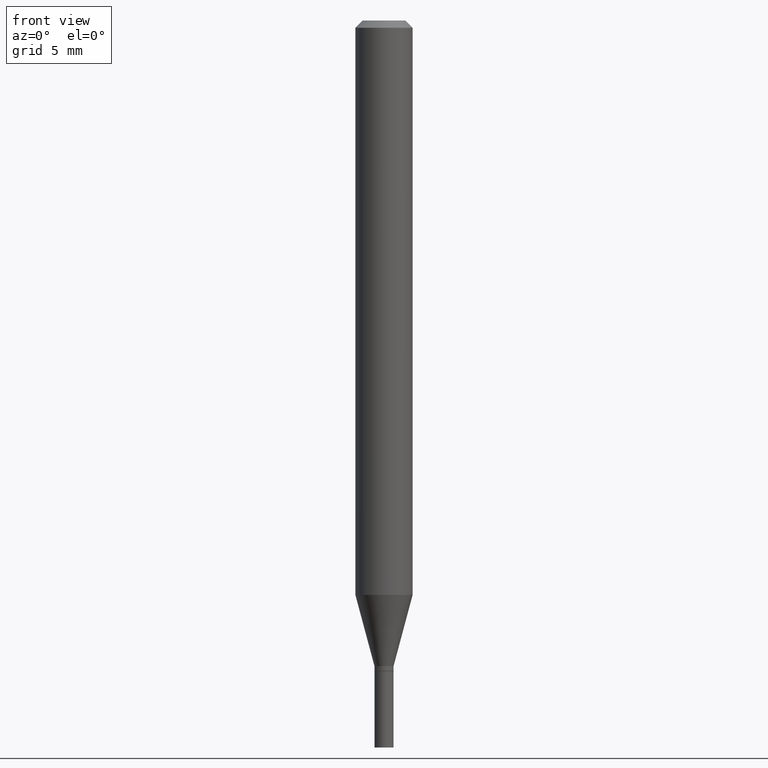
[diagram: clean part render]
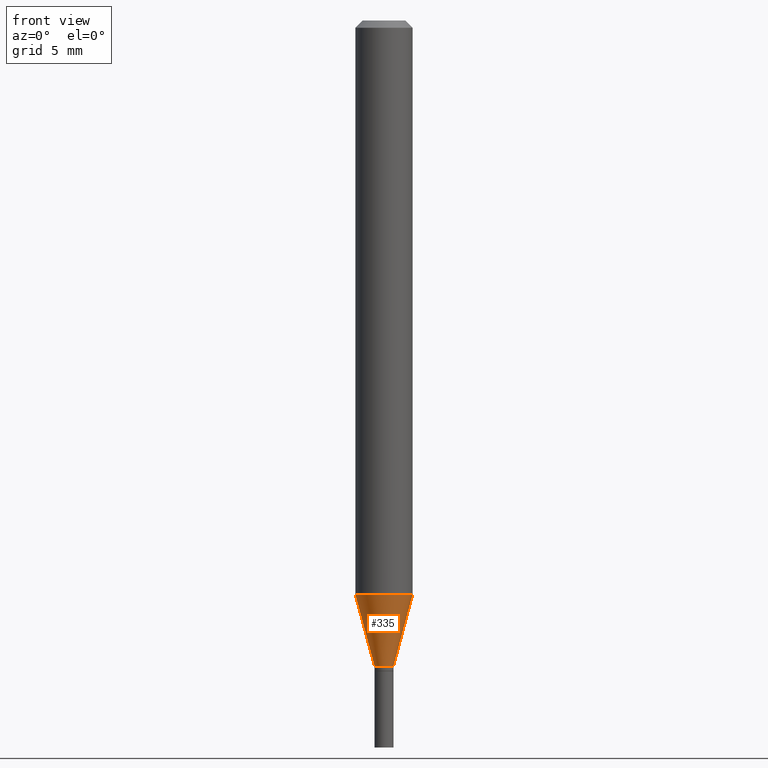
[diagram: same view with one face highlighted and labeled with its STEP entity id]
A machine part, front view. The second image highlights one B-rep face of the part: STEP entity #335.
In plain terms, the highlighted conical surface has half-angle 15 deg.
Its self-contained STEP definition (entity closure, byte-faithful):
#3 = VERTEX_POINT ( 'NONE', #242 ) ;
#6 = VECTOR ( 'NONE', #226, 39.37007874015748854 ) ;
#9 = CARTESIAN_POINT ( 'NONE',  ( -0.05905000000000001914, -3.718331978600737710E-15, -1.185143800722164409 ) ) ;
#15 = DIRECTION ( 'NONE',  ( -2.445468806185136597E-29, 3.491481338843145583E-15, 1.000000000000000000 ) ) ;
#18 = AXIS2_PLACEMENT_3D ( 'NONE', #143, #426, #29 ) ;
#29 = DIRECTION ( 'NONE',  ( 1.000000000000000000, -6.982962677686266711E-15, 0.000000000000000000 ) ) ;
#45 = LINE ( 'NONE', #119, #405 ) ;
#52 = DIRECTION ( 'NONE',  ( 1.000000000000000000, -6.982962677686266711E-15, 0.000000000000000000 ) ) ;
#86 = CARTESIAN_POINT ( 'NONE',  ( 2.898232195509746702E-29, -4.137907464067076414E-15, -1.185143800722164409 ) ) ;
#107 = EDGE_CURVE ( 'NONE', #307, #3, #189, .T. ) ;
#116 = CARTESIAN_POINT ( 'NONE',  ( 0.05905000000000001914, -4.550251410184451334E-15, -1.185143800722164409 ) ) ;
#119 = CARTESIAN_POINT ( 'NONE',  ( 0.01969999999999989468, -4.788217508089488526E-15, -1.331999999999999851 ) ) ;
#123 = CARTESIAN_POINT ( 'NONE',  ( 3.257364449838602072E-29, -4.650653143339069312E-15, -1.331999999999999851 ) ) ;
#143 = CARTESIAN_POINT ( 'NONE',  ( 3.257364449838602072E-29, -4.650653143339069312E-15, -1.331999999999999851 ) ) ;
#150 = ORIENTED_EDGE ( 'NONE', *, *, #107, .T. ) ;
#161 = AXIS2_PLACEMENT_3D ( 'NONE', #86, #376, #194 ) ;
#189 = CIRCLE ( 'NONE', #18, 0.01969999999999989468 ) ;
#192 = FACE_OUTER_BOUND ( 'NONE', #377, .T. ) ;
#194 = DIRECTION ( 'NONE',  ( 1.000000000000000000, -6.982962677686270655E-15, 0.000000000000000000 ) ) ;
#226 = DIRECTION ( 'NONE',  ( -0.2588190451025211836, 5.211531920934547886E-15, 0.9659258262890679791 ) ) ;
#234 = VERTEX_POINT ( 'NONE', #116 ) ;
#236 = CIRCLE ( 'NONE', #161, 0.05905000000000001914 ) ;
#242 = CARTESIAN_POINT ( 'NONE',  ( 0.01969999999999989468, -4.788217508089488526E-15, -1.331999999999999851 ) ) ;
#266 = LINE ( 'NONE', #408, #6 ) ;
#301 = VERTEX_POINT ( 'NONE', #9 ) ;
#307 = VERTEX_POINT ( 'NONE', #435 ) ;
#325 = AXIS2_PLACEMENT_3D ( 'NONE', #123, #15, #52 ) ;
#334 = ORIENTED_EDGE ( 'NONE', *, *, #443, .T. ) ;
#335 = ADVANCED_FACE ( 'NONE', ( #192 ), #436, .T. ) ;
#376 = DIRECTION ( 'NONE',  ( -2.445468806185136597E-29, 3.491481338843145583E-15, 1.000000000000000000 ) ) ;
#377 = EDGE_LOOP ( 'NONE', ( #457, #150, #334, #422 ) ) ;
#405 = VECTOR ( 'NONE', #411, 39.37007874015748854 ) ;
#408 = CARTESIAN_POINT ( 'NONE',  ( -0.01969999999999989468, -4.510676224394330003E-15, -1.331999999999999851 ) ) ;
#411 = DIRECTION ( 'NONE',  ( 0.2588190451025211836, 1.565188264969622559E-15, 0.9659258262890679791 ) ) ;
#422 = ORIENTED_EDGE ( 'NONE', *, *, #461, .F. ) ;
#426 = DIRECTION ( 'NONE',  ( -2.445468806185136597E-29, 3.491481338843145583E-15, 1.000000000000000000 ) ) ;
#432 = EDGE_CURVE ( 'NONE', #307, #301, #266, .T. ) ;
#435 = CARTESIAN_POINT ( 'NONE',  ( -0.01969999999999989468, -4.114504101497534251E-15, -1.331999999999999851 ) ) ;
#436 = CONICAL_SURFACE ( 'NONE', #325, 0.01969999999999989468, 0.2617993877991499074 ) ;
#443 = EDGE_CURVE ( 'NONE', #3, #234, #45, .T. ) ;
#457 = ORIENTED_EDGE ( 'NONE', *, *, #432, .F. ) ;
#461 = EDGE_CURVE ( 'NONE', #301, #234, #236, .T. ) ;